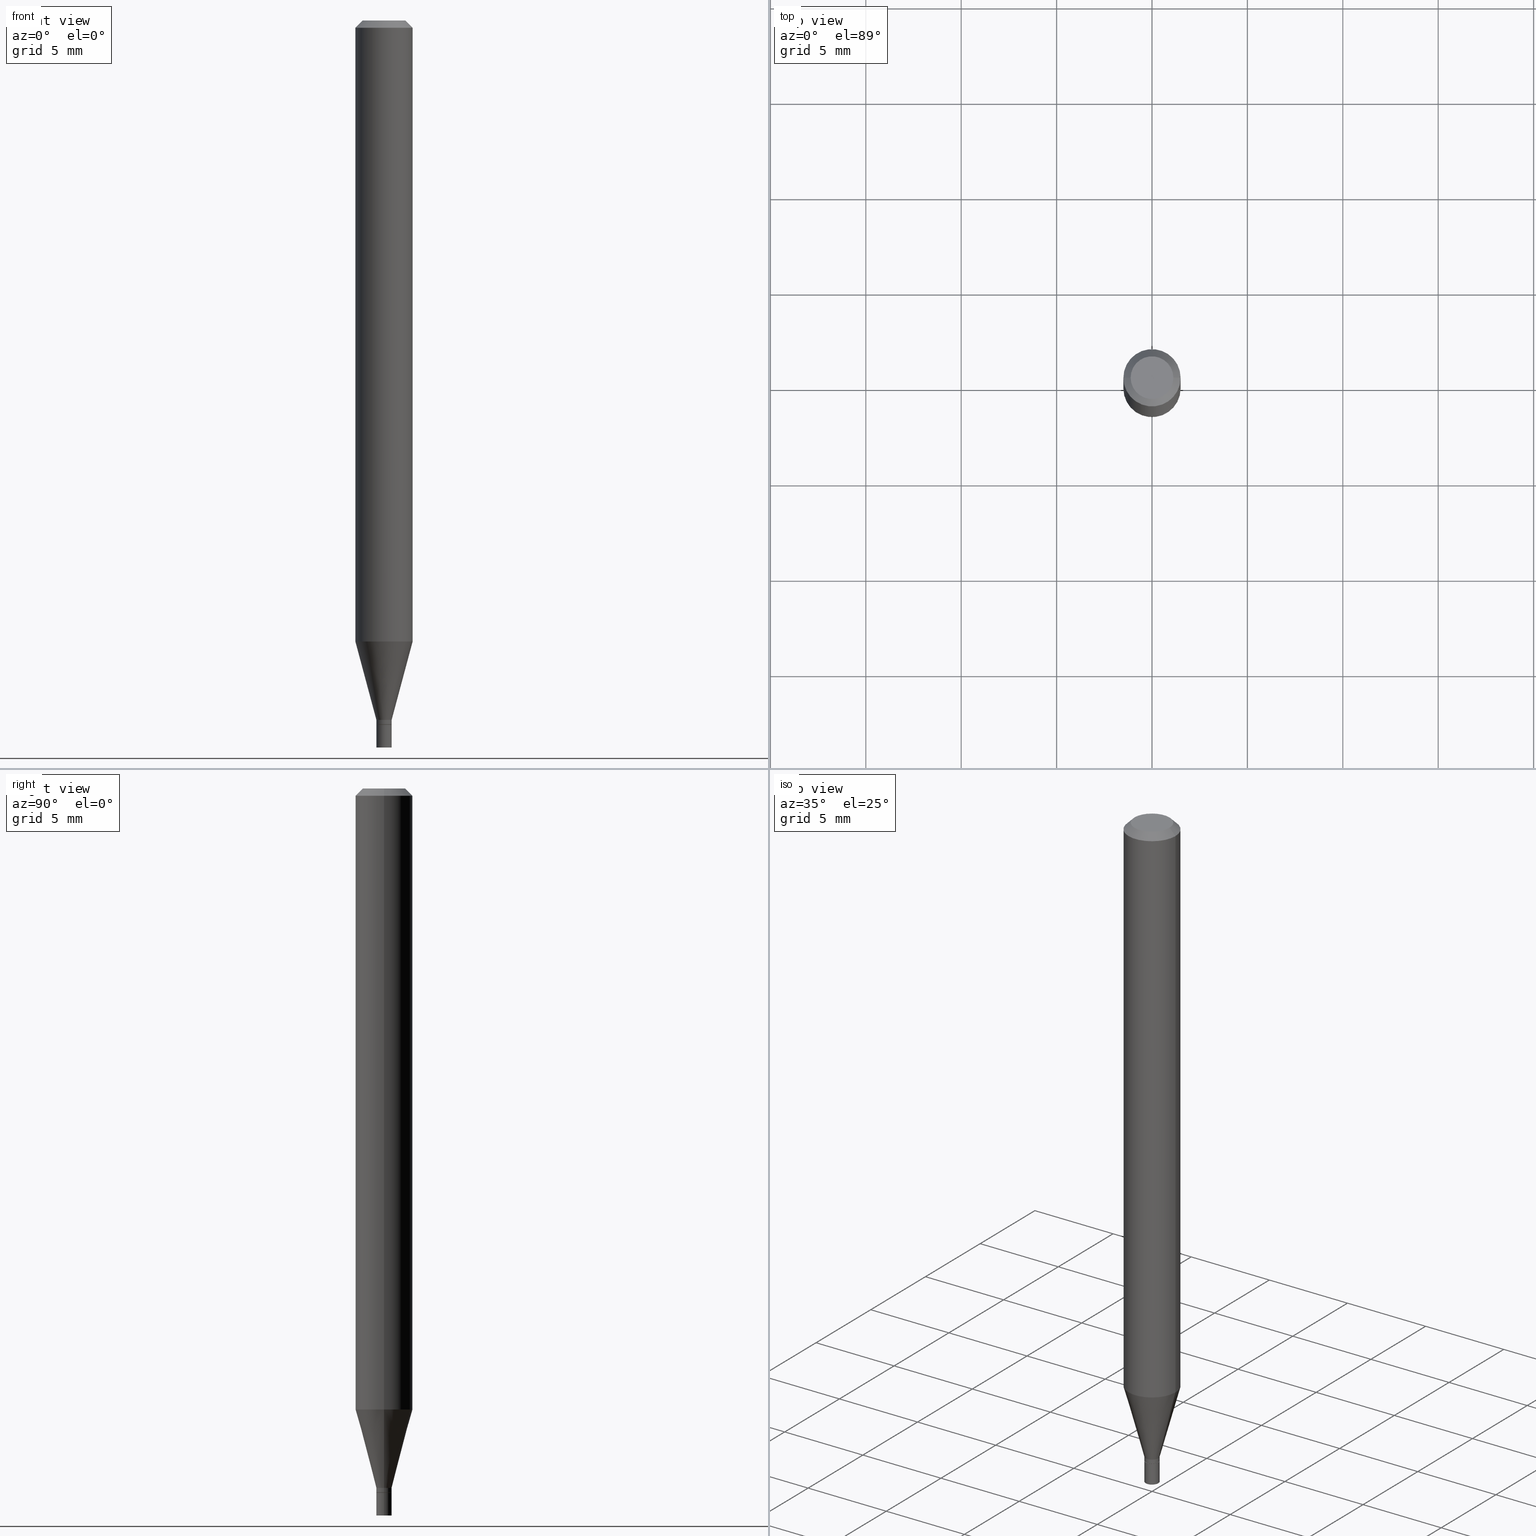
[diagram: canonical four-view strip — front | top / right | iso, engineering-drawing reading convention]
A machine part, canonical four-view strip (front | top / right | iso — engineering-drawing reading convention). The complete STEP part file that produces these views, byte-faithful:
ISO-10303-21;
HEADER;
FILE_DESCRIPTION (( 'STEP AP203' ),
    '1' );
FILE_NAME ('02807.STEP',
    '2024-03-18T21:42:35',
    ( '' ),
    ( '' ),
    'SwSTEP 2.0',
    'SolidWorks 2023',
    '' );
FILE_SCHEMA (( 'CONFIG_CONTROL_DESIGN' ));
ENDSEC;

DATA;
#1 = CARTESIAN_POINT ( 'NONE',  ( 3.551554347222674728E-29, -5.070678348401901214E-15, -1.452300000000000146 ) ) ;
#2 = CARTESIAN_POINT ( 'NONE',  ( 3.551554347222674728E-29, -5.070678348401901214E-15, -1.452300000000000146 ) ) ;
#3 = CIRCLE ( 'NONE', #287, 0.04404999999999999888 ) ;
#4 = CARTESIAN_POINT ( 'NONE',  ( 3.668203209277704895E-29, -5.237222008264718177E-15, -1.500000000000000222 ) ) ;
#5 =( NAMED_UNIT ( * ) SI_UNIT ( $, .STERADIAN. ) SOLID_ANGLE_UNIT ( ) );
#6 = EDGE_CURVE ( 'NONE', #238, #348, #153, .T. ) ;
#7 = PRODUCT ( '02807', '02807', '', ( #371 ) ) ;
#8 = CONICAL_SURFACE ( 'NONE', #148, 0.01574999999999992725, 0.2617993877991502405 ) ;
#9 = AXIS2_PLACEMENT_3D ( 'NONE', #344, #379, #169 ) ;
#10 = EDGE_CURVE ( 'NONE', #236, #135, #3, .T. ) ;
#11 = CARTESIAN_POINT ( 'NONE',  ( 3.528811487325152432E-29, -5.038207571950659670E-15, -1.443000000000000060 ) ) ;
#12 = CARTESIAN_POINT ( 'NONE',  ( -0.01575000000000000011, -5.042912567785805555E-15, -1.452800000000000091 ) ) ;
#13 = ORIENTED_EDGE ( 'NONE', *, *, #57, .T. ) ;
#14 = DIRECTION ( 'NONE',  ( 2.438088387897960049E-29, -3.491481338843145188E-15, -1.000000000000000000 ) ) ;
#15 = VERTEX_POINT ( 'NONE', #136 ) ;
#16 = COORDINATED_UNIVERSAL_TIME_OFFSET ( 5, 0, .BEHIND. ) ;
#17 = FACE_OUTER_BOUND ( 'NONE', #212, .T. ) ;
#18 = EDGE_LOOP ( 'NONE', ( #68, #466, #100, #389 ) ) ;
#19 = AXIS2_PLACEMENT_3D ( 'NONE', #434, #391, #34 ) ;
#20 = CALENDAR_DATE ( 2024, 18, 3 ) ;
#21 = CARTESIAN_POINT ( 'NONE',  ( 3.668203209277705088E-31, -5.237222008264718399E-17, -0.01499999999999999944 ) ) ;
#22 = CALENDAR_DATE ( 2024, 18, 3 ) ;
#23 = APPLICATION_CONTEXT ( 'configuration controlled 3d designs of mechanical parts and assemblies' ) ;
#24 = ORIENTED_EDGE ( 'NONE', *, *, #282, .F. ) ;
#25 = ADVANCED_FACE ( 'NONE', ( #202 ), #8, .T. ) ;
#26 = AXIS2_PLACEMENT_3D ( 'NONE', #2, #217, #71 ) ;
#27 = DIRECTION ( 'NONE',  ( -2.445468806185136877E-29, 3.491481338843145188E-15, 1.000000000000000000 ) ) ;
#28 = ORIENTED_EDGE ( 'NONE', *, *, #390, .T. ) ;
#29 = ORIENTED_EDGE ( 'NONE', *, *, #89, .T. ) ;
#30 = ORIENTED_EDGE ( 'NONE', *, *, #282, .T. ) ;
#31 = VECTOR ( 'NONE', #255, 39.37007874015748143 ) ;
#32 = DIRECTION ( 'NONE',  ( -0.7071067811865450192, 2.468850131082230634E-15, -0.7071067811865500152 ) ) ;
#33 = ADVANCED_FACE ( 'NONE', ( #234 ), #62, .F. ) ;
#34 = DIRECTION ( 'NONE',  ( 1.000000000000000000, -6.982962677686267499E-15, 4.876176775795936353E-29 ) ) ;
#35 = DIRECTION ( 'NONE',  ( 1.000000000000000000, -6.982962677686252511E-15, 0.000000000000000000 ) ) ;
#36 = EDGE_CURVE ( 'NONE', #236, #167, #241, .T. ) ;
#37 = VECTOR ( 'NONE', #281, 39.37007874015748143 ) ;
#38 = CARTESIAN_POINT ( 'NONE',  ( 3.528811487325152432E-29, -5.038207571950659670E-15, -1.443000000000000060 ) ) ;
#39 = AXIS2_PLACEMENT_3D ( 'NONE', #160, #342, #298 ) ;
#40 = LINE ( 'NONE', #284, #405 ) ;
#41 = DIRECTION ( 'NONE',  ( -2.445468806185136877E-29, 3.491481338843145188E-15, 1.000000000000000000 ) ) ;
#42 = DIRECTION ( 'NONE',  ( -2.445468806185136597E-29, 3.491481338843145583E-15, 1.000000000000000000 ) ) ;
#43 = PLANE ( 'NONE',  #346 ) ;
#44 = APPROVAL ( #132, 'UNSPECIFIED' ) ;
#45 = ORIENTED_EDGE ( 'NONE', *, *, #166, .T. ) ;
#46 = CIRCLE ( 'NONE', #237, 0.04404999999999999888 ) ;
#47 = AXIS2_PLACEMENT_3D ( 'NONE', #189, #223, #88 ) ;
#48 = DATE_AND_TIME ( #226, #96 ) ;
#49 = DIRECTION ( 'NONE',  ( 1.000000000000000000, -6.982962677686286432E-15, 0.000000000000000000 ) ) ;
#50 = PERSON_AND_ORGANIZATION ( #243, #464 ) ;
#51 = ADVANCED_FACE ( 'NONE', ( #386 ), #102, .T. ) ;
#52 = AXIS2_PLACEMENT_3D ( 'NONE', #142, #312, #274 ) ;
#53 = CALENDAR_DATE ( 2024, 18, 3 ) ;
#54 = CARTESIAN_POINT ( 'NONE',  ( 3.528811487325152432E-29, -5.038207571950659670E-15, -1.443000000000000060 ) ) ;
#55 = DIRECTION ( 'NONE',  ( -2.445468806185136597E-29, 3.491481338843145583E-15, 1.000000000000000000 ) ) ;
#56 = DIRECTION ( 'NONE',  ( 1.000000000000000000, -6.982962677686265922E-15, 4.888540261209747396E-29 ) ) ;
#57 = EDGE_CURVE ( 'NONE', #182, #348, #59, .T. ) ;
#58 = ORIENTED_EDGE ( 'NONE', *, *, #413, .F. ) ;
#59 = LINE ( 'NONE', #204, #37 ) ;
#60 = CLOSED_SHELL ( 'NONE', ( #152, #360, #72, #180, #194, #25, #116, #289, #459, #33, #384, #213 ) ) ;
#61 = ORIENTED_EDGE ( 'NONE', *, *, #235, .T. ) ;
#62 = PLANE ( 'NONE',  #52 ) ;
#63 = VERTEX_POINT ( 'NONE', #416 ) ;
#64 = DIRECTION ( 'NONE',  ( 1.000000000000000000, -6.982962677686265922E-15, 4.876176775795936353E-29 ) ) ;
#65 = EDGE_LOOP ( 'NONE', ( #345, #108 ) ) ;
#66 = EDGE_CURVE ( 'NONE', #277, #15, #425, .T. ) ;
#67 = CARTESIAN_POINT ( 'NONE',  ( -0.05904999999999999832, 3.599717260347268549E-16, -0.01499999999999999944 ) ) ;
#68 = ORIENTED_EDGE ( 'NONE', *, *, #106, .T. ) ;
#69 = CIRCLE ( 'NONE', #26, 0.01574999999999992378 ) ;
#70 = AXIS2_PLACEMENT_3D ( 'NONE', #257, #304, #122 ) ;
#71 = DIRECTION ( 'NONE',  ( 1.000000000000000000, -6.982962677686258822E-15, 0.000000000000000000 ) ) ;
#72 = ADVANCED_FACE ( 'NONE', ( #98 ), #392, .T. ) ;
#73 = CARTESIAN_POINT ( 'NONE',  ( 0.000000000000000000, 0.000000000000000000, 0.000000000000000000 ) ) ;
#74 = CC_DESIGN_PERSON_AND_ORGANIZATION_ASSIGNMENT ( #197, #373, ( #85 ) ) ;
#75 = AXIS2_PLACEMENT_3D ( 'NONE', #1, #144, #76 ) ;
#76 = DIRECTION ( 'NONE',  ( 1.000000000000000000, -6.982962677686258822E-15, 0.000000000000000000 ) ) ;
#77 =( GEOMETRIC_REPRESENTATION_CONTEXT ( 3 ) GLOBAL_UNCERTAINTY_ASSIGNED_CONTEXT ( ( #426 ) ) GLOBAL_UNIT_ASSIGNED_CONTEXT ( ( #147, #118, #5 ) ) REPRESENTATION_CONTEXT ( 'NONE', 'WORKASPACE' ) );
#78 = LENGTH_MEASURE_WITH_UNIT ( LENGTH_MEASURE( 0.02539999999999999897 ), #438 );
#79 = DIRECTION ( 'NONE',  ( -2.445468806185136597E-29, 3.491481338843145583E-15, 1.000000000000000000 ) ) ;
#80 = DIRECTION ( 'NONE',  ( -1.000000000000000000, 6.982962677686265922E-15, -4.876176775795935793E-29 ) ) ;
#81 = DIRECTION ( 'NONE',  ( 2.445468806185136597E-29, -3.491481338843145583E-15, -1.000000000000000000 ) ) ;
#82 = CARTESIAN_POINT ( 'NONE',  ( 0.01574999999999992378, -1.099816621735581761E-16, 7.679978421878562650E-31 ) ) ;
#83 = CARTESIAN_POINT ( 'NONE',  ( 1.099816621735942295E-16, 0.01574999999999492778, -1.452800000000000091 ) ) ;
#84 = AXIS2_PLACEMENT_3D ( 'NONE', #196, #259, #300 ) ;
#85 = PRODUCT_DEFINITION_FORMATION_WITH_SPECIFIED_SOURCE ( 'ANY', '', #7, .NOT_KNOWN. ) ;
#86 = CIRCLE ( 'NONE', #279, 0.05904999999999999832 ) ;
#87 = PERSON_AND_ORGANIZATION ( #243, #464 ) ;
#88 = DIRECTION ( 'NONE',  ( 1.000000000000000000, -6.982962677686266711E-15, 0.000000000000000000 ) ) ;
#89 = EDGE_CURVE ( 'NONE', #135, #280, #276, .T. ) ;
#90 = DATE_AND_TIME ( #20, #270 ) ;
#91 = PERSON_AND_ORGANIZATION_ROLE ( 'creator' ) ;
#92 = CARTESIAN_POINT ( 'NONE',  ( 0.05904999999999999832, -4.123439461173740327E-16, 2.879382386107500220E-30 ) ) ;
#93 = LINE ( 'NONE', #120, #31 ) ;
#94 = VECTOR ( 'NONE', #310, 39.37007874015748143 ) ;
#95 = APPROVAL_STATUS ( 'not_yet_approved' ) ;
#96 = LOCAL_TIME ( 17, 42, 35.00000000000000000, #370 ) ;
#97 = EDGE_CURVE ( 'NONE', #275, #272, #69, .T. ) ;
#98 = FACE_OUTER_BOUND ( 'NONE', #190, .T. ) ;
#99 = LINE ( 'NONE', #92, #423 ) ;
#100 = ORIENTED_EDGE ( 'NONE', *, *, #442, .F. ) ;
#101 = EDGE_LOOP ( 'NONE', ( #463, #175, #350, #465 ) ) ;
#102 = CYLINDRICAL_SURFACE ( 'NONE', #368, 0.01575000000000000011 ) ;
#103 = VECTOR ( 'NONE', #239, 39.37007874015748143 ) ;
#104 = ORIENTED_EDGE ( 'NONE', *, *, #66, .T. ) ;
#105 = ORIENTED_EDGE ( 'NONE', *, *, #353, .T. ) ;
#106 = EDGE_CURVE ( 'NONE', #272, #275, #250, .T. ) ;
#107 = EDGE_LOOP ( 'NONE', ( #329, #28, #104, #210 ) ) ;
#108 = ORIENTED_EDGE ( 'NONE', *, *, #207, .T. ) ;
#109 = CARTESIAN_POINT ( 'NONE',  ( -0.04404999999999999888, 3.337856159934036604E-16, 1.092986812167893621E-16 ) ) ;
#110 = CIRCLE ( 'NONE', #124, 0.01575000000000000011 ) ;
#111 = CARTESIAN_POINT ( 'NONE',  ( -0.05904999999999999832, 4.195754854663391478E-16, -2.904631170795521892E-30 ) ) ;
#112 = CARTESIAN_POINT ( 'NONE',  ( -0.01575000000000000011, -5.042912567785805555E-15, -1.500000000000000222 ) ) ;
#113 = CONICAL_SURFACE ( 'NONE', #269, 0.01574999999999992725, 0.2617993877991502405 ) ;
#114 = DIRECTION ( 'NONE',  ( -0.7071067811865642261, 7.493145998870414114E-15, 0.7071067811865309194 ) ) ;
#115 = FACE_OUTER_BOUND ( 'NONE', #240, .T. ) ;
#116 = ADVANCED_FACE ( 'NONE', ( #219 ), #245, .T. ) ;
#117 = DIRECTION ( 'NONE',  ( -2.445468806185136597E-29, 3.491481338843145583E-15, 1.000000000000000000 ) ) ;
#118 =( NAMED_UNIT ( * ) PLANE_ANGLE_UNIT ( ) SI_UNIT ( $, .RADIAN. ) );
#119 = CC_DESIGN_PERSON_AND_ORGANIZATION_ASSIGNMENT ( #50, #330, ( #85 ) ) ;
#120 = CARTESIAN_POINT ( 'NONE',  ( -0.01574999999999992725, -4.926297091068444383E-15, -1.443000000000000060 ) ) ;
#121 = ORIENTED_EDGE ( 'NONE', *, *, #106, .F. ) ;
#122 = DIRECTION ( 'NONE',  ( 1.000000000000000000, 0.000000000000000000, 0.000000000000000000 ) ) ;
#123 = FACE_OUTER_BOUND ( 'NONE', #65, .T. ) ;
#124 = AXIS2_PLACEMENT_3D ( 'NONE', #4, #446, #49 ) ;
#125 = VERTEX_POINT ( 'NONE', #216 ) ;
#126 = DATE_AND_TIME ( #22, #246 ) ;
#127 = APPROVAL_DATE_TIME ( #48, #44 ) ;
#128 = CARTESIAN_POINT ( 'NONE',  ( -0.01574999999999992378, 1.119104808822152377E-16, -7.747322767151439850E-31 ) ) ;
#129 = CARTESIAN_POINT ( 'NONE',  ( -2.672865154728371978E-45, 3.816143058285937292E-31, 1.092986812167916054E-16 ) ) ;
#130 = PERSON_AND_ORGANIZATION ( #243, #464 ) ;
#131 = EDGE_CURVE ( 'NONE', #182, #63, #358, .T. ) ;
#132 = APPROVAL_STATUS ( 'not_yet_approved' ) ;
#133 = CC_DESIGN_APPROVAL ( #157, ( #301 ) ) ;
#134 = ORIENTED_EDGE ( 'NONE', *, *, #10, .F. ) ;
#135 = VERTEX_POINT ( 'NONE', #109 ) ;
#136 = CARTESIAN_POINT ( 'NONE',  ( 0.05904999999999999832, -4.886335815082588610E-15, -1.281402200032268013 ) ) ;
#137 = ORIENTED_EDGE ( 'NONE', *, *, #89, .F. ) ;
#138 = ORIENTED_EDGE ( 'NONE', *, *, #139, .F. ) ;
#139 = EDGE_CURVE ( 'NONE', #63, #238, #40, .T. ) ;
#140 = AXIS2_PLACEMENT_3D ( 'NONE', #365, #79, #428 ) ;
#141 = EDGE_LOOP ( 'NONE', ( #458, #13, #424, #138 ) ) ;
#142 = CARTESIAN_POINT ( 'NONE',  ( 3.552777081625766969E-29, -5.072424089071322718E-15, -1.452800000000000091 ) ) ;
#143 = ORIENTED_EDGE ( 'NONE', *, *, #139, .T. ) ;
#144 = DIRECTION ( 'NONE',  ( -2.445468806185136597E-29, 3.491481338843145583E-15, 1.000000000000000000 ) ) ;
#145 = CC_DESIGN_PERSON_AND_ORGANIZATION_ASSIGNMENT ( #130, #91, ( #301 ) ) ;
#146 = CARTESIAN_POINT ( 'NONE',  ( 0.000000000000000000, 0.000000000000000000, 0.000000000000000000 ) ) ;
#147 =( CONVERSION_BASED_UNIT ( 'INCH', #78 ) LENGTH_UNIT ( ) NAMED_UNIT ( #355 ) );
#148 = AXIS2_PLACEMENT_3D ( 'NONE', #383, #211, #351 ) ;
#149 = CONICAL_SURFACE ( 'NONE', #39, 0.01525000000000000140, 0.7853981633974718157 ) ;
#150 = DIRECTION ( 'NONE',  ( -2.445468806185136597E-29, 3.491481338843145583E-15, 1.000000000000000000 ) ) ;
#151 = CARTESIAN_POINT ( 'NONE',  ( 0.05904999999999999832, -4.647161662000212105E-16, -0.01499999999999999944 ) ) ;
#152 = ADVANCED_FACE ( 'NONE', ( #188 ), #361, .T. ) ;
#153 = CIRCLE ( 'NONE', #414, 0.01575000000000000011 ) ;
#154 = SECURITY_CLASSIFICATION ( '', '', #296 ) ;
#155 = APPROVAL ( #95, 'UNSPECIFIED' ) ;
#156 = DATE_TIME_ROLE ( 'creation_date' ) ;
#157 = APPROVAL ( #195, 'UNSPECIFIED' ) ;
#158 = CYLINDRICAL_SURFACE ( 'NONE', #84, 0.01575000000000000011 ) ;
#159 = DATE_AND_TIME ( #53, #224 ) ;
#160 = CARTESIAN_POINT ( 'NONE',  ( 3.552777081625766969E-29, -5.072424089071322718E-15, -1.452800000000000091 ) ) ;
#161 = PRODUCT_RELATED_PRODUCT_CATEGORY ( 'detail', '', ( #7 ) ) ;
#162 = AXIS2_PLACEMENT_3D ( 'NONE', #436, #150, #359 ) ;
#163 = COORDINATED_UNIVERSAL_TIME_OFFSET ( 5, 0, .BEHIND. ) ;
#164 = DIRECTION ( 'NONE',  ( -2.438088387897960049E-29, 3.491481338843145188E-15, 1.000000000000000000 ) ) ;
#165 = APPROVAL_DATE_TIME ( #126, #155 ) ;
#166 = EDGE_CURVE ( 'NONE', #418, #275, #324, .T. ) ;
#167 = VERTEX_POINT ( 'NONE', #151 ) ;
#168 = EDGE_LOOP ( 'NONE', ( #354, #456, #433, #380 ) ) ;
#169 = DIRECTION ( 'NONE',  ( 1.000000000000000000, -6.982962677686252511E-15, 0.000000000000000000 ) ) ;
#170 = EDGE_LOOP ( 'NONE', ( #178, #420, #421, #382 ) ) ;
#171 = CARTESIAN_POINT ( 'NONE',  ( 0.01574999999999992725, -5.148189234124217550E-15, -1.443000000000000060 ) ) ;
#172 = EDGE_LOOP ( 'NONE', ( #203, #309, #24, #283 ) ) ;
#173 = EDGE_CURVE ( 'NONE', #174, #280, #181, .T. ) ;
#174 = VERTEX_POINT ( 'NONE', #366 ) ;
#175 = ORIENTED_EDGE ( 'NONE', *, *, #97, .T. ) ;
#176 = CIRCLE ( 'NONE', #307, 0.05904999999999999832 ) ;
#177 = APPROVAL_PERSON_ORGANIZATION ( #335, #157, #268 ) ;
#178 = ORIENTED_EDGE ( 'NONE', *, *, #166, .F. ) ;
#179 = DIRECTION ( 'NONE',  ( 1.000000000000000000, -6.982962677686286432E-15, 0.000000000000000000 ) ) ;
#180 = ADVANCED_FACE ( 'NONE', ( #247 ), #318, .T. ) ;
#181 = LINE ( 'NONE', #111, #258 ) ;
#182 = VERTEX_POINT ( 'NONE', #112 ) ;
#183 = FACE_OUTER_BOUND ( 'NONE', #172, .T. ) ;
#184 = LINE ( 'NONE', #82, #316 ) ;
#185 = AXIS2_PLACEMENT_3D ( 'NONE', #388, #231, #460 ) ;
#186 = DIRECTION ( 'NONE',  ( 1.000000000000000000, -6.982962677686267499E-15, 4.876176775795936353E-29 ) ) ;
#187 = DIRECTION ( 'NONE',  ( 0.7071067811865642261, -2.468850131082431399E-15, 0.7071067811865309194 ) ) ;
#188 = FACE_OUTER_BOUND ( 'NONE', #18, .T. ) ;
#189 = CARTESIAN_POINT ( 'NONE',  ( 3.668203209277705088E-31, -5.237222008264718399E-17, -0.01499999999999999944 ) ) ;
#190 = EDGE_LOOP ( 'NONE', ( #134, #407, #334, #137 ) ) ;
#191 = VECTOR ( 'NONE', #32, 39.37007874015748143 ) ;
#192 = CARTESIAN_POINT ( 'NONE',  ( 3.576687321579069994E-29, -5.368277968210015545E-15, -1.500000000000000222 ) ) ;
#193 = VECTOR ( 'NONE', #187, 39.37007874015748143 ) ;
#194 = ADVANCED_FACE ( 'NONE', ( #183 ), #113, .T. ) ;
#195 = APPROVAL_STATUS ( 'not_yet_approved' ) ;
#196 = CARTESIAN_POINT ( 'NONE',  ( 0.000000000000000000, 0.000000000000000000, 0.000000000000000000 ) ) ;
#197 = PERSON_AND_ORGANIZATION ( #243, #464 ) ;
#198 = DIRECTION ( 'NONE',  ( 1.000000000000000000, -6.982962677686265922E-15, 4.876176775795935793E-29 ) ) ;
#199 = PLANE ( 'NONE',  #205 ) ;
#200 = AXIS2_PLACEMENT_3D ( 'NONE', #303, #410, #331 ) ;
#201 = DATE_TIME_ROLE ( 'classification_date' ) ;
#202 = FACE_OUTER_BOUND ( 'NONE', #107, .T. ) ;
#203 = ORIENTED_EDGE ( 'NONE', *, *, #442, .T. ) ;
#204 = CARTESIAN_POINT ( 'NONE',  ( -0.01575000000000000011, 1.119104808822157801E-16, -7.747322767151476634E-31 ) ) ;
#205 = AXIS2_PLACEMENT_3D ( 'NONE', #83, #14, #254 ) ;
#206 = CC_DESIGN_SECURITY_CLASSIFICATION ( #154, ( #85 ) ) ;
#207 = EDGE_CURVE ( 'NONE', #348, #238, #222, .T. ) ;
#208 = ORIENTED_EDGE ( 'NONE', *, *, #404, .F. ) ;
#209 = CC_DESIGN_DATE_AND_TIME_ASSIGNMENT ( #159, #201, ( #154 ) ) ;
#210 = ORIENTED_EDGE ( 'NONE', *, *, #315, .F. ) ;
#211 = DIRECTION ( 'NONE',  ( -2.445468806185136597E-29, 3.491481338843145583E-15, 1.000000000000000000 ) ) ;
#212 = EDGE_LOOP ( 'NONE', ( #256, #311 ) ) ;
#213 = ADVANCED_FACE ( 'NONE', ( #439 ), #286, .T. ) ;
#214 = VECTOR ( 'NONE', #114, 39.37007874015748143 ) ;
#215 = CONICAL_SURFACE ( 'NONE', #9, 0.01525000000000000140, 0.7853981633974718157 ) ;
#216 = CARTESIAN_POINT ( 'NONE',  ( 0.01525000000000000140, -5.178914269906038380E-15, -1.452800000000000091 ) ) ;
#217 = DIRECTION ( 'NONE',  ( -2.445468806185136597E-29, 3.491481338843145583E-15, 1.000000000000000000 ) ) ;
#218 = CC_DESIGN_DATE_AND_TIME_ASSIGNMENT ( #230, #156, ( #301 ) ) ;
#219 = FACE_OUTER_BOUND ( 'NONE', #168, .T. ) ;
#220 = DIRECTION ( 'NONE',  ( -2.445468806185136877E-29, 3.491481338843145188E-15, 1.000000000000000000 ) ) ;
#221 = CC_DESIGN_PERSON_AND_ORGANIZATION_ASSIGNMENT ( #87, #444, ( #7 ) ) ;
#222 = CIRCLE ( 'NONE', #336, 0.01575000000000000011 ) ;
#223 = DIRECTION ( 'NONE',  ( -2.445468806185136597E-29, 3.491481338843145583E-15, 1.000000000000000000 ) ) ;
#224 = LOCAL_TIME ( 17, 42, 35.00000000000000000, #16 ) ;
#225 = PERSON_AND_ORGANIZATION ( #243, #464 ) ;
#226 = CALENDAR_DATE ( 2024, 18, 3 ) ;
#227 = APPROVAL_ROLE ( '' ) ;
#228 = DIRECTION ( 'NONE',  ( -2.445468806185136597E-29, 3.491481338843145583E-15, 1.000000000000000000 ) ) ;
#229 = CARTESIAN_POINT ( 'NONE',  ( 3.668203209277705088E-31, -5.237222008264718399E-17, -0.01499999999999999944 ) ) ;
#230 = DATE_AND_TIME ( #378, #393 ) ;
#231 = DIRECTION ( 'NONE',  ( 2.445468806185136597E-29, -3.491481338843145583E-15, -1.000000000000000000 ) ) ;
#232 = APPROVAL_ROLE ( '' ) ;
#233 = ORIENTED_EDGE ( 'NONE', *, *, #273, .T. ) ;
#234 = FACE_OUTER_BOUND ( 'NONE', #462, .T. ) ;
#235 = EDGE_CURVE ( 'NONE', #125, #418, #326, .T. ) ;
#236 = VERTEX_POINT ( 'NONE', #293 ) ;
#237 = AXIS2_PLACEMENT_3D ( 'NONE', #129, #295, #406 ) ;
#238 = VERTEX_POINT ( 'NONE', #320 ) ;
#239 = DIRECTION ( 'NONE',  ( 0.7071067811865450192, -7.319954787623246579E-15, -0.7071067811865500152 ) ) ;
#240 = EDGE_LOOP ( 'NONE', ( #233, #352 ) ) ;
#241 = LINE ( 'NONE', #419, #103 ) ;
#242 = EDGE_LOOP ( 'NONE', ( #314, #461, #29, #105 ) ) ;
#243 = PERSON ( 'UNSPECIFIED', 'UNSPECIFIED', 'UNSPECIFIED', ('UNSPECIFIED'), ('UNSPECIFIED'), ('UNSPECIFIED') ) ;
#244 = EDGE_CURVE ( 'NONE', #63, #182, #110, .T. ) ;
#245 = CYLINDRICAL_SURFACE ( 'NONE', #162, 0.05904999999999999832 ) ;
#246 = LOCAL_TIME ( 17, 42, 35.00000000000000000, #447 ) ;
#247 = FACE_OUTER_BOUND ( 'NONE', #427, .T. ) ;
#248 = DIRECTION ( 'NONE',  ( -2.445468806185136597E-29, 3.491481338843145583E-15, 1.000000000000000000 ) ) ;
#249 = DIRECTION ( 'NONE',  ( 1.000000000000000000, -6.982962677686286432E-15, 0.000000000000000000 ) ) ;
#250 = CIRCLE ( 'NONE', #75, 0.01574999999999992378 ) ;
#251 = AXIS2_PLACEMENT_3D ( 'NONE', #400, #319, #80 ) ;
#252 = ADVANCED_BREP_SHAPE_REPRESENTATION ( '02807', ( #403, #402, #70 ), #77 ) ;
#253 = ADVANCED_FACE ( 'NONE', ( #123 ), #199, .F. ) ;
#254 = DIRECTION ( 'NONE',  ( -1.000000000000000000, 6.982962677686265922E-15, -4.876176775795935793E-29 ) ) ;
#255 = DIRECTION ( 'NONE',  ( -0.2588190451025215166, 5.211531920934551042E-15, 0.9659258262890679791 ) ) ;
#256 = ORIENTED_EDGE ( 'NONE', *, *, #244, .F. ) ;
#257 = CARTESIAN_POINT ( 'NONE',  ( 0.000000000000000000, 0.000000000000000000, 0.000000000000000000 ) ) ;
#258 = VECTOR ( 'NONE', #220, 39.37007874015748143 ) ;
#259 = DIRECTION ( 'NONE',  ( -2.445468806185136597E-29, 3.491481338843145583E-15, 1.000000000000000000 ) ) ;
#260 = ORIENTED_EDGE ( 'NONE', *, *, #57, .F. ) ;
#261 = SHAPE_DEFINITION_REPRESENTATION ( #323, #252 ) ;
#262 = DIRECTION ( 'NONE',  ( 1.000000000000000000, -6.982962677686273021E-15, 0.000000000000000000 ) ) ;
#263 = ADVANCED_FACE ( 'NONE', ( #401 ), #158, .T. ) ;
#264 = APPROVAL_DATE_TIME ( #90, #157 ) ;
#265 = DIRECTION ( 'NONE',  ( 1.000000000000000000, -6.982962677686252511E-15, 0.000000000000000000 ) ) ;
#266 = CARTESIAN_POINT ( 'NONE',  ( -0.05904999999999999832, -1.843606559057592272E-15, -0.01499999999999999944 ) ) ;
#267 = ORIENTED_EDGE ( 'NONE', *, *, #173, .T. ) ;
#268 = APPROVAL_ROLE ( '' ) ;
#269 = AXIS2_PLACEMENT_3D ( 'NONE', #38, #248, #363 ) ;
#270 = LOCAL_TIME ( 17, 42, 35.00000000000000000, #453 ) ;
#271 = FACE_OUTER_BOUND ( 'NONE', #170, .T. ) ;
#272 = VERTEX_POINT ( 'NONE', #367 ) ;
#273 = EDGE_CURVE ( 'NONE', #135, #236, #46, .T. ) ;
#274 = DIRECTION ( 'NONE',  ( 1.000000000000000000, -6.982962677686265922E-15, 4.876176775795935793E-29 ) ) ;
#275 = VERTEX_POINT ( 'NONE', #441 ) ;
#276 = LINE ( 'NONE', #67, #191 ) ;
#277 = VERTEX_POINT ( 'NONE', #450 ) ;
#278 = DIRECTION ( 'NONE',  ( -2.445468806185136597E-29, 3.491481338843145583E-15, 1.000000000000000000 ) ) ;
#279 = AXIS2_PLACEMENT_3D ( 'NONE', #229, #297, #376 ) ;
#280 = VERTEX_POINT ( 'NONE', #266 ) ;
#281 = DIRECTION ( 'NONE',  ( -2.445468806185136877E-29, 3.491481338843145188E-15, 1.000000000000000000 ) ) ;
#282 = EDGE_CURVE ( 'NONE', #15, #174, #176, .T. ) ;
#283 = ORIENTED_EDGE ( 'NONE', *, *, #66, .F. ) ;
#284 = CARTESIAN_POINT ( 'NONE',  ( 0.01575000000000000011, -1.099816621735586938E-16, 7.679978421878599434E-31 ) ) ;
#285 = DESIGN_CONTEXT ( 'detailed design', #435, 'design' ) ;
#286 = CYLINDRICAL_SURFACE ( 'NONE', #374, 0.01574999999999992378 ) ;
#287 = AXIS2_PLACEMENT_3D ( 'NONE', #343, #457, #56 ) ;
#288 = CIRCLE ( 'NONE', #47, 0.05904999999999999832 ) ;
#289 = ADVANCED_FACE ( 'NONE', ( #443 ), #422, .T. ) ;
#290 = DIRECTION ( 'NONE',  ( -2.445468806185136877E-29, 3.491481338843145188E-15, 1.000000000000000000 ) ) ;
#291 = DIRECTION ( 'NONE',  ( -2.445468806185136597E-29, 3.491481338843145583E-15, 1.000000000000000000 ) ) ;
#292 = DIRECTION ( 'NONE',  ( 1.000000000000000000, -6.982962677686257244E-15, 0.000000000000000000 ) ) ;
#293 = CARTESIAN_POINT ( 'NONE',  ( 0.04404999999999999888, -3.798447818264458600E-16, 1.092986812167939966E-16 ) ) ;
#294 = DIRECTION ( 'NONE',  ( -2.445468806185136597E-29, 3.491481338843145583E-15, 1.000000000000000000 ) ) ;
#295 = DIRECTION ( 'NONE',  ( -2.445468806185136597E-29, 3.491481338843145583E-15, 1.000000000000000000 ) ) ;
#296 = SECURITY_CLASSIFICATION_LEVEL ( 'unclassified' ) ;
#297 = DIRECTION ( 'NONE',  ( -2.445468806185136597E-29, 3.491481338843145583E-15, 1.000000000000000000 ) ) ;
#298 = DIRECTION ( 'NONE',  ( 1.000000000000000000, -6.982962677686252511E-15, 0.000000000000000000 ) ) ;
#299 = VECTOR ( 'NONE', #417, 39.37007874015748143 ) ;
#300 = DIRECTION ( 'NONE',  ( 1.000000000000000000, -6.982962677686265922E-15, 4.876176775795936353E-29 ) ) ;
#301 = PRODUCT_DEFINITION ( 'UNKNOWN', '', #85, #285 ) ;
#302 = DIRECTION ( 'NONE',  ( 1.000000000000000000, -6.982962677686257244E-15, 0.000000000000000000 ) ) ;
#303 = CARTESIAN_POINT ( 'NONE',  ( 3.133629108355918061E-29, -4.473991868965215268E-15, -1.281402200032268013 ) ) ;
#304 = DIRECTION ( 'NONE',  ( 0.000000000000000000, 0.000000000000000000, 1.000000000000000000 ) ) ;
#305 = ADVANCED_FACE ( 'NONE', ( #17 ), #43, .F. ) ;
#306 = ORIENTED_EDGE ( 'NONE', *, *, #340, .F. ) ;
#307 = AXIS2_PLACEMENT_3D ( 'NONE', #328, #117, #262 ) ;
#308 = AXIS2_PLACEMENT_3D ( 'NONE', #11, #294, #292 ) ;
#309 = ORIENTED_EDGE ( 'NONE', *, *, #325, .T. ) ;
#310 = DIRECTION ( 'NONE',  ( 0.2588190451025215166, 1.565188264969620784E-15, 0.9659258262890679791 ) ) ;
#311 = ORIENTED_EDGE ( 'NONE', *, *, #131, .F. ) ;
#312 = DIRECTION ( 'NONE',  ( -2.438088387897960049E-29, 3.491481338843145188E-15, 1.000000000000000000 ) ) ;
#313 = EDGE_LOOP ( 'NONE', ( #61, #45, #121, #385 ) ) ;
#314 = ORIENTED_EDGE ( 'NONE', *, *, #36, .F. ) ;
#315 = EDGE_CURVE ( 'NONE', #174, #15, #396, .T. ) ;
#316 = VECTOR ( 'NONE', #41, 39.37007874015748143 ) ;
#317 = DIRECTION ( 'NONE',  ( -2.445468806185136597E-29, 3.491481338843145583E-15, 1.000000000000000000 ) ) ;
#318 = CYLINDRICAL_SURFACE ( 'NONE', #431, 0.05904999999999999832 ) ;
#319 = DIRECTION ( 'NONE',  ( 2.438088387897960049E-29, -3.491481338843145188E-15, -1.000000000000000000 ) ) ;
#320 = CARTESIAN_POINT ( 'NONE',  ( 0.01575000000000000011, -5.182405751244882176E-15, -1.452800000000000091 ) ) ;
#321 = APPROVAL_PERSON_ORGANIZATION ( #412, #155, #232 ) ;
#322 = DIRECTION ( 'NONE',  ( 1.000000000000000000, -6.982962677686266711E-15, 4.876176775795936353E-29 ) ) ;
#323 = PRODUCT_DEFINITION_SHAPE ( 'NONE', 'NONE',  #301 ) ;
#324 = LINE ( 'NONE', #430, #214 ) ;
#325 = EDGE_CURVE ( 'NONE', #451, #174, #93, .T. ) ;
#326 = CIRCLE ( 'NONE', #455, 0.01525000000000000140 ) ;
#327 = AXIS2_PLACEMENT_3D ( 'NONE', #54, #55, #302 ) ;
#328 = CARTESIAN_POINT ( 'NONE',  ( 3.133629108355918061E-29, -4.473991868965215268E-15, -1.281402200032268013 ) ) ;
#329 = ORIENTED_EDGE ( 'NONE', *, *, #325, .F. ) ;
#330 = PERSON_AND_ORGANIZATION_ROLE ( 'design_supplier' ) ;
#331 = DIRECTION ( 'NONE',  ( 1.000000000000000000, -6.982962677686273021E-15, 0.000000000000000000 ) ) ;
#332 = PERSON_AND_ORGANIZATION ( #243, #464 ) ;
#333 = FACE_OUTER_BOUND ( 'NONE', #313, .T. ) ;
#334 = ORIENTED_EDGE ( 'NONE', *, *, #340, .T. ) ;
#335 = PERSON_AND_ORGANIZATION ( #243, #464 ) ;
#336 = AXIS2_PLACEMENT_3D ( 'NONE', #394, #395, #249 ) ;
#337 = CIRCLE ( 'NONE', #327, 0.01574999999999992725 ) ;
#338 = DIRECTION ( 'NONE',  ( -1.000000000000000000, 6.982962677686266711E-15, 0.000000000000000000 ) ) ;
#339 = CARTESIAN_POINT ( 'NONE',  ( -0.01525000000000000140, -4.961417094693796339E-15, -1.452800000000000091 ) ) ;
#340 = EDGE_CURVE ( 'NONE', #167, #280, #86, .T. ) ;
#341 = APPLICATION_PROTOCOL_DEFINITION ( 'international standard', 'config_control_design', 1994, #435 ) ;
#342 = DIRECTION ( 'NONE',  ( -2.445468806185136597E-29, 3.491481338843145583E-15, 1.000000000000000000 ) ) ;
#343 = CARTESIAN_POINT ( 'NONE',  ( -2.672865154728371978E-45, 3.816143058285937292E-31, 1.092986812167916054E-16 ) ) ;
#344 = CARTESIAN_POINT ( 'NONE',  ( 3.552777081625766969E-29, -5.072424089071322718E-15, -1.452800000000000091 ) ) ;
#345 = ORIENTED_EDGE ( 'NONE', *, *, #6, .T. ) ;
#346 = AXIS2_PLACEMENT_3D ( 'NONE', #192, #164, #198 ) ;
#347 = CIRCLE ( 'NONE', #375, 0.01525000000000000140 ) ;
#348 = VERTEX_POINT ( 'NONE', #12 ) ;
#349 = CIRCLE ( 'NONE', #308, 0.01574999999999992725 ) ;
#350 = ORIENTED_EDGE ( 'NONE', *, *, #452, .T. ) ;
#351 = DIRECTION ( 'NONE',  ( 1.000000000000000000, -6.982962677686257244E-15, 0.000000000000000000 ) ) ;
#352 = ORIENTED_EDGE ( 'NONE', *, *, #10, .T. ) ;
#353 = EDGE_CURVE ( 'NONE', #280, #167, #288, .T. ) ;
#354 = ORIENTED_EDGE ( 'NONE', *, *, #173, .F. ) ;
#355 = DIMENSIONAL_EXPONENTS ( 1.000000000000000000, 0.000000000000000000, 0.000000000000000000, 0.000000000000000000, 0.000000000000000000, 0.000000000000000000, 0.000000000000000000 ) ;
#356 = CC_DESIGN_PERSON_AND_ORGANIZATION_ASSIGNMENT ( #332, #409, ( #154 ) ) ;
#357 = CARTESIAN_POINT ( 'NONE',  ( 3.552777081625766969E-29, -5.072424089071322718E-15, -1.452800000000000091 ) ) ;
#358 = CIRCLE ( 'NONE', #140, 0.01575000000000000011 ) ;
#359 = DIRECTION ( 'NONE',  ( 1.000000000000000000, -6.982962677686266711E-15, 4.876176775795936353E-29 ) ) ;
#360 = ADVANCED_FACE ( 'NONE', ( #333 ), #215, .T. ) ;
#361 = CYLINDRICAL_SURFACE ( 'NONE', #19, 0.01574999999999992378 ) ;
#362 = CARTESIAN_POINT ( 'NONE',  ( 0.01525000000000000140, -5.178914269906038380E-15, -1.452800000000000091 ) ) ;
#363 = DIRECTION ( 'NONE',  ( 1.000000000000000000, -6.982962677686257244E-15, 0.000000000000000000 ) ) ;
#364 = AXIS2_PLACEMENT_3D ( 'NONE', #21, #81, #338 ) ;
#365 = CARTESIAN_POINT ( 'NONE',  ( 3.668203209277704895E-29, -5.237222008264718177E-15, -1.500000000000000222 ) ) ;
#366 = CARTESIAN_POINT ( 'NONE',  ( -0.05904999999999999832, -4.054416383498875775E-15, -1.281402200032268013 ) ) ;
#367 = CARTESIAN_POINT ( 'NONE',  ( 0.01574999999999992378, -5.180660010575459883E-15, -1.452300000000000146 ) ) ;
#368 = AXIS2_PLACEMENT_3D ( 'NONE', #454, #381, #64 ) ;
#369 = CC_DESIGN_APPROVAL ( #155, ( #154 ) ) ;
#370 = COORDINATED_UNIVERSAL_TIME_OFFSET ( 5, 0, .BEHIND. ) ;
#371 = MECHANICAL_CONTEXT ( 'NONE', #23, 'mechanical' ) ;
#372 = CARTESIAN_POINT ( 'NONE',  ( 3.552777081625766969E-29, -5.072424089071322718E-15, -1.452800000000000091 ) ) ;
#373 = PERSON_AND_ORGANIZATION_ROLE ( 'creator' ) ;
#374 = AXIS2_PLACEMENT_3D ( 'NONE', #73, #42, #186 ) ;
#375 = AXIS2_PLACEMENT_3D ( 'NONE', #372, #228, #265 ) ;
#376 = DIRECTION ( 'NONE',  ( 1.000000000000000000, -6.982962677686266711E-15, 0.000000000000000000 ) ) ;
#377 = ORIENTED_EDGE ( 'NONE', *, *, #131, .T. ) ;
#378 = CALENDAR_DATE ( 2024, 18, 3 ) ;
#379 = DIRECTION ( 'NONE',  ( -2.445468806185136597E-29, 3.491481338843145583E-15, 1.000000000000000000 ) ) ;
#380 = ORIENTED_EDGE ( 'NONE', *, *, #353, .F. ) ;
#381 = DIRECTION ( 'NONE',  ( -2.445468806185136597E-29, 3.491481338843145583E-15, 1.000000000000000000 ) ) ;
#382 = ORIENTED_EDGE ( 'NONE', *, *, #97, .F. ) ;
#383 = CARTESIAN_POINT ( 'NONE',  ( 3.528811487325152432E-29, -5.038207571950659670E-15, -1.443000000000000060 ) ) ;
#384 = ADVANCED_FACE ( 'NONE', ( #271 ), #149, .T. ) ;
#385 = ORIENTED_EDGE ( 'NONE', *, *, #437, .F. ) ;
#386 = FACE_OUTER_BOUND ( 'NONE', #141, .T. ) ;
#387 = ORIENTED_EDGE ( 'NONE', *, *, #235, .F. ) ;
#388 = CARTESIAN_POINT ( 'NONE',  ( 3.668203209277705088E-31, -5.237222008264718399E-17, -0.01499999999999999944 ) ) ;
#389 = ORIENTED_EDGE ( 'NONE', *, *, #452, .F. ) ;
#390 = EDGE_CURVE ( 'NONE', #451, #277, #337, .T. ) ;
#391 = DIRECTION ( 'NONE',  ( -2.445468806185136597E-29, 3.491481338843145583E-15, 1.000000000000000000 ) ) ;
#392 = CONICAL_SURFACE ( 'NONE', #185, 0.05904999999999999832, 0.7853981633974447263 ) ;
#393 = LOCAL_TIME ( 17, 42, 35.00000000000000000, #163 ) ;
#394 = CARTESIAN_POINT ( 'NONE',  ( 3.552777081625766969E-29, -5.072424089071322718E-15, -1.452800000000000091 ) ) ;
#395 = DIRECTION ( 'NONE',  ( -2.445468806185136597E-29, 3.491481338843145583E-15, 1.000000000000000000 ) ) ;
#396 = CIRCLE ( 'NONE', #200, 0.05904999999999999832 ) ;
#397 = CARTESIAN_POINT ( 'NONE',  ( -0.01574999999999992725, -4.490356737283660473E-15, -1.443000000000000060 ) ) ;
#398 = EDGE_CURVE ( 'NONE', #275, #451, #408, .T. ) ;
#399 = CARTESIAN_POINT ( 'NONE',  ( 3.552777081625766969E-29, -5.072424089071322718E-15, -1.452800000000000091 ) ) ;
#400 = CARTESIAN_POINT ( 'NONE',  ( 3.075995059520799729E-16, 0.04404999999999999888, -9.915041236764475073E-17 ) ) ;
#401 = FACE_OUTER_BOUND ( 'NONE', #448, .T. ) ;
#402 = MANIFOLD_SOLID_BREP ( 'Body-Move/Copy2[2]', #60 ) ;
#403 = MANIFOLD_SOLID_BREP ( 'Body-Move/Copy2[1]', #429 ) ;
#404 = EDGE_CURVE ( 'NONE', #418, #125, #347, .T. ) ;
#405 = VECTOR ( 'NONE', #290, 39.37007874015748143 ) ;
#406 = DIRECTION ( 'NONE',  ( 1.000000000000000000, -6.982962677686265922E-15, 4.888540261209747396E-29 ) ) ;
#407 = ORIENTED_EDGE ( 'NONE', *, *, #36, .T. ) ;
#408 = LINE ( 'NONE', #128, #299 ) ;
#409 = PERSON_AND_ORGANIZATION_ROLE ( 'classification_officer' ) ;
#410 = DIRECTION ( 'NONE',  ( -2.445468806185136597E-29, 3.491481338843145583E-15, 1.000000000000000000 ) ) ;
#411 = ORIENTED_EDGE ( 'NONE', *, *, #207, .F. ) ;
#412 = PERSON_AND_ORGANIZATION ( #243, #464 ) ;
#413 = EDGE_CURVE ( 'NONE', #15, #167, #99, .T. ) ;
#414 = AXIS2_PLACEMENT_3D ( 'NONE', #357, #278, #179 ) ;
#415 = APPROVAL_PERSON_ORGANIZATION ( #225, #44, #227 ) ;
#416 = CARTESIAN_POINT ( 'NONE',  ( 0.01575000000000000011, -5.347203670438277635E-15, -1.500000000000000222 ) ) ;
#417 = DIRECTION ( 'NONE',  ( -2.445468806185136877E-29, 3.491481338843145188E-15, 1.000000000000000000 ) ) ;
#418 = VERTEX_POINT ( 'NONE', #339 ) ;
#419 = CARTESIAN_POINT ( 'NONE',  ( 0.05904999999999999832, -4.574846268510561447E-16, -0.01499999999999999944 ) ) ;
#420 = ORIENTED_EDGE ( 'NONE', *, *, #404, .T. ) ;
#421 = ORIENTED_EDGE ( 'NONE', *, *, #437, .T. ) ;
#422 = CONICAL_SURFACE ( 'NONE', #364, 0.05904999999999999832, 0.7853981633974447263 ) ;
#423 = VECTOR ( 'NONE', #27, 39.37007874015748143 ) ;
#424 = ORIENTED_EDGE ( 'NONE', *, *, #6, .F. ) ;
#425 = LINE ( 'NONE', #171, #94 ) ;
#426 = UNCERTAINTY_MEASURE_WITH_UNIT (LENGTH_MEASURE( 1.000000000000000082E-05 ), #147, 'distance_accuracy_value', 'NONE');
#427 = EDGE_LOOP ( 'NONE', ( #30, #267, #306, #58 ) ) ;
#428 = DIRECTION ( 'NONE',  ( 1.000000000000000000, -6.982962677686286432E-15, 0.000000000000000000 ) ) ;
#429 = CLOSED_SHELL ( 'NONE', ( #51, #305, #263, #253 ) ) ;
#430 = CARTESIAN_POINT ( 'NONE',  ( -0.01525000000000000140, -4.964066321867906752E-15, -1.452800000000000091 ) ) ;
#431 = AXIS2_PLACEMENT_3D ( 'NONE', #146, #291, #322 ) ;
#432 = CC_DESIGN_APPROVAL ( #44, ( #85 ) ) ;
#433 = ORIENTED_EDGE ( 'NONE', *, *, #413, .T. ) ;
#434 = CARTESIAN_POINT ( 'NONE',  ( 0.000000000000000000, 0.000000000000000000, 0.000000000000000000 ) ) ;
#435 = APPLICATION_CONTEXT ( 'configuration controlled 3d designs of mechanical parts and assemblies' ) ;
#436 = CARTESIAN_POINT ( 'NONE',  ( 0.000000000000000000, 0.000000000000000000, 0.000000000000000000 ) ) ;
#437 = EDGE_CURVE ( 'NONE', #125, #272, #445, .T. ) ;
#438 =( LENGTH_UNIT ( ) NAMED_UNIT ( * ) SI_UNIT ( $, .METRE. ) );
#439 = FACE_OUTER_BOUND ( 'NONE', #101, .T. ) ;
#440 = PLANE ( 'NONE',  #251 ) ;
#441 = CARTESIAN_POINT ( 'NONE',  ( -0.01574999999999992378, -4.958767867519685927E-15, -1.452300000000000146 ) ) ;
#442 = EDGE_CURVE ( 'NONE', #277, #451, #349, .T. ) ;
#443 = FACE_OUTER_BOUND ( 'NONE', #242, .T. ) ;
#444 = PERSON_AND_ORGANIZATION_ROLE ( 'design_owner' ) ;
#445 = LINE ( 'NONE', #362, #193 ) ;
#446 = DIRECTION ( 'NONE',  ( -2.445468806185136597E-29, 3.491481338843145583E-15, 1.000000000000000000 ) ) ;
#447 = COORDINATED_UNIVERSAL_TIME_OFFSET ( 5, 0, .BEHIND. ) ;
#448 = EDGE_LOOP ( 'NONE', ( #260, #377, #143, #411 ) ) ;
#449 = APPLICATION_PROTOCOL_DEFINITION ( 'international standard', 'config_control_design', 1994, #23 ) ;
#450 = CARTESIAN_POINT ( 'NONE',  ( 0.01574999999999992725, -5.148189234124217550E-15, -1.443000000000000060 ) ) ;
#451 = VERTEX_POINT ( 'NONE', #397 ) ;
#452 = EDGE_CURVE ( 'NONE', #272, #277, #184, .T. ) ;
#453 = COORDINATED_UNIVERSAL_TIME_OFFSET ( 5, 0, .BEHIND. ) ;
#454 = CARTESIAN_POINT ( 'NONE',  ( 0.000000000000000000, 0.000000000000000000, 0.000000000000000000 ) ) ;
#455 = AXIS2_PLACEMENT_3D ( 'NONE', #399, #317, #35 ) ;
#456 = ORIENTED_EDGE ( 'NONE', *, *, #315, .T. ) ;
#457 = DIRECTION ( 'NONE',  ( -2.445468806185136597E-29, 3.491481338843145583E-15, 1.000000000000000000 ) ) ;
#458 = ORIENTED_EDGE ( 'NONE', *, *, #244, .T. ) ;
#459 = ADVANCED_FACE ( 'NONE', ( #115 ), #440, .F. ) ;
#460 = DIRECTION ( 'NONE',  ( -1.000000000000000000, 6.982962677686266711E-15, 0.000000000000000000 ) ) ;
#461 = ORIENTED_EDGE ( 'NONE', *, *, #273, .F. ) ;
#462 = EDGE_LOOP ( 'NONE', ( #387, #208 ) ) ;
#463 = ORIENTED_EDGE ( 'NONE', *, *, #398, .F. ) ;
#464 = ORGANIZATION ( 'UNSPECIFIED', 'UNSPECIFIED', '' ) ;
#465 = ORIENTED_EDGE ( 'NONE', *, *, #390, .F. ) ;
#466 = ORIENTED_EDGE ( 'NONE', *, *, #398, .T. ) ;
ENDSEC;
END-ISO-10303-21;
